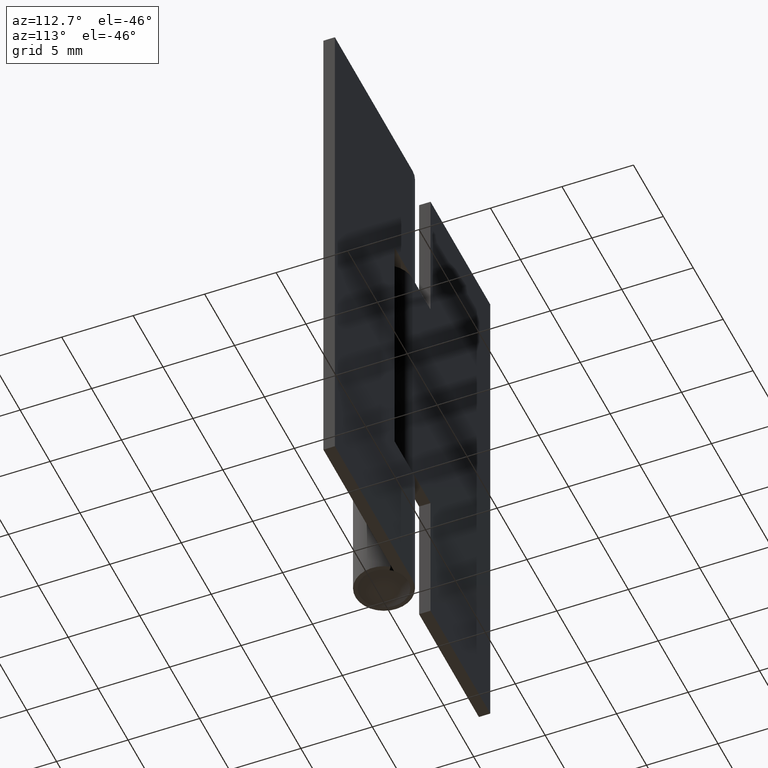
[diagram: clean part render]
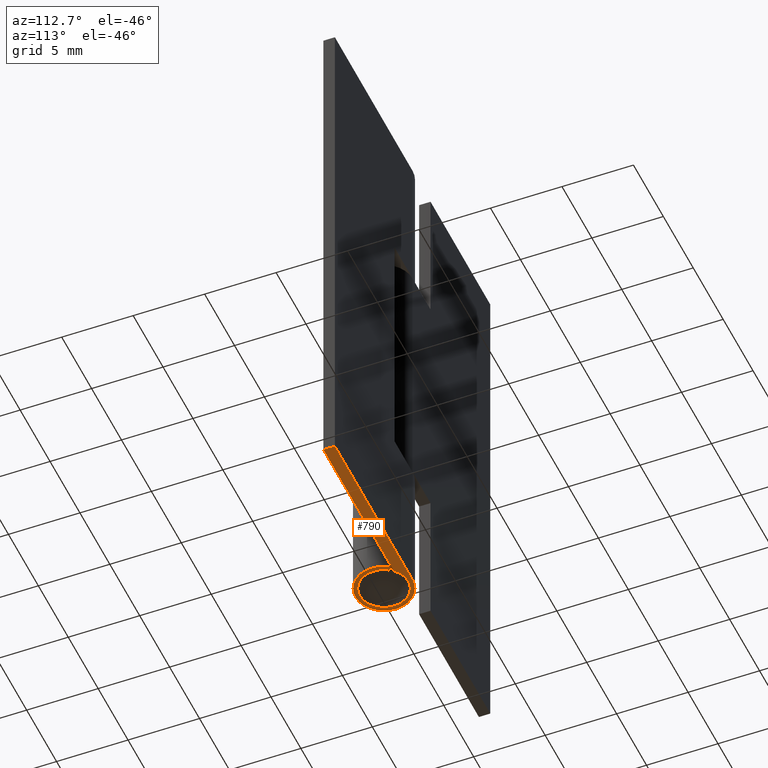
[diagram: same view with one face highlighted and labeled with its STEP entity id]
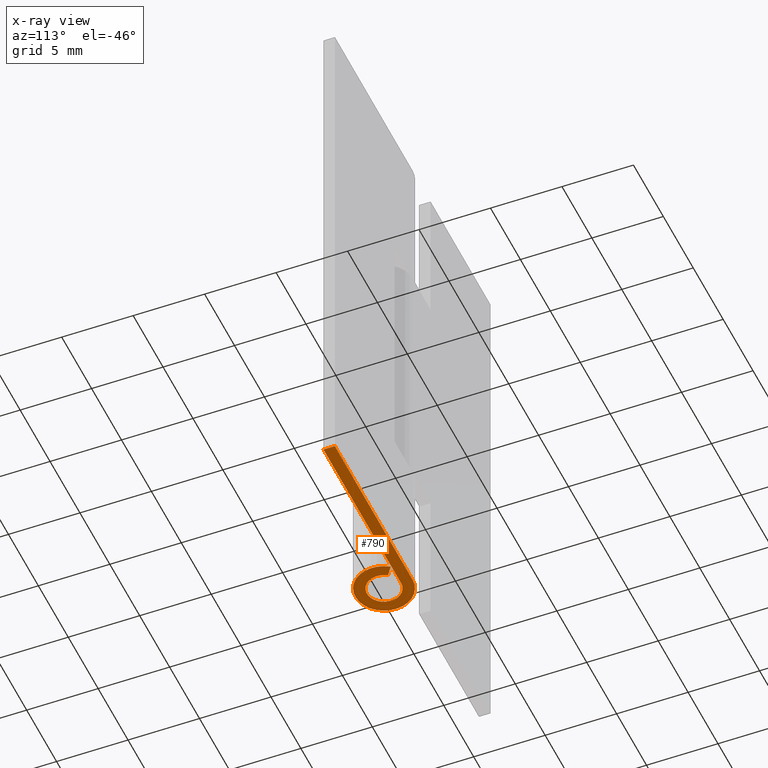
[diagram: x-ray of the same camera — body ghosted, the highlighted face saturated]
A machine part, auxiliary view. The second image highlights one B-rep face of the part: STEP entity #790.
The next image is the same camera in x-ray: the body ghosted, the highlighted face saturated — about 0% of this face is hidden behind the body in this view.
In plain terms, the highlighted face is a freeform B-spline surface patch.
Its self-contained STEP definition (entity closure, byte-faithful):
#690=CARTESIAN_POINT('',(-2.749228759156930,-2.199795509127577,0.0));
#691=CARTESIAN_POINT('',(13.749249364118381,-2.199795509127577,0.0));
#692=CARTESIAN_POINT('',(-2.749228759156930,2.199799886185817,0.0));
#693=CARTESIAN_POINT('',(13.749249364118381,2.199799886185817,0.0));
#694=B_SPLINE_SURFACE_WITH_KNOTS('',1,1,((#690,#692),(#691,#693)),.UNSPECIFIED.,.F.,.F.,.U.,(2,2),(2,2),(0.0,16.498478123275309),(0.0,4.399595395313393),.UNSPECIFIED.);
#695=CARTESIAN_POINT('',(1.384347E-014,2.0,0.0));
#696=VERTEX_POINT('',#695);
#697=CARTESIAN_POINT('',(13.0,1.999999000000000,0.0));
#698=VERTEX_POINT('',#697);
#699=CARTESIAN_POINT('',(1.384347E-014,2.0,0.0));
#700=CARTESIAN_POINT('',(13.0,1.999999000000000,0.0));
#701=QUASI_UNIFORM_CURVE('',1,(#699,#700),.UNSPECIFIED.,.F.,.U.);
#702=EDGE_CURVE('',#696,#698,#701,.T.);
#703=ORIENTED_EDGE('',*,*,#702,.T.);
#704=CARTESIAN_POINT('',(13.0,1.200000000000000,0.0));
#705=VERTEX_POINT('',#704);
#706=CARTESIAN_POINT('',(13.0,1.999999000000000,0.0));
#707=CARTESIAN_POINT('',(13.0,1.200000000000000,0.0));
#708=QUASI_UNIFORM_CURVE('',1,(#706,#707),.UNSPECIFIED.,.F.,.U.);
#709=EDGE_CURVE('',#698,#705,#708,.T.);
#710=ORIENTED_EDGE('',*,*,#709,.T.);
#711=CARTESIAN_POINT('',(1.709743E-014,1.200000000000020,0.0));
#712=VERTEX_POINT('',#711);
#713=CARTESIAN_POINT('',(13.0,1.200000000000000,0.0));
#714=CARTESIAN_POINT('',(1.709743E-014,1.200000000000020,0.0));
#715=QUASI_UNIFORM_CURVE('',1,(#713,#714),.UNSPECIFIED.,.F.,.U.);
#716=EDGE_CURVE('',#705,#712,#715,.T.);
#717=ORIENTED_EDGE('',*,*,#716,.T.);
#718=CARTESIAN_POINT('',(0.981784090317221,0.690000000000011,0.0));
#719=VERTEX_POINT('',#718);
#720=CARTESIAN_POINT('',(0.981784090317221,0.690000000000011,0.0));
#721=CARTESIAN_POINT('',(1.053606424845792,0.587926162224422,0.0));
#722=CARTESIAN_POINT('',(1.146328935430797,0.398904182143549,0.0));
#723=CARTESIAN_POINT('',(1.200233068406793,0.128158589362954,0.0));
#724=CARTESIAN_POINT('',(1.202601860530300,-0.122317621862901,0.0));
#725=CARTESIAN_POINT('',(1.152958768940641,-0.368931154498446,0.0));
#726=CARTESIAN_POINT('',(1.031585402112339,-0.635379216249773,0.0));
#727=CARTESIAN_POINT('',(0.834330703310877,-0.886168969748628,0.0));
#728=CARTESIAN_POINT('',(0.586337343297605,-1.060580031812583,0.0));
#729=CARTESIAN_POINT('',(0.345342346522549,-1.155020282122436,0.0));
#730=CARTESIAN_POINT('',(0.149252013675548,-1.196273661904103,0.0));
#731=CARTESIAN_POINT('',(-0.084336330430198,-1.205861343738027,0.0));
#732=CARTESIAN_POINT('',(-0.340654428637064,-1.162628432956125,0.0));
#733=CARTESIAN_POINT('',(-0.633015552638036,-1.036880290516315,0.0));
#734=CARTESIAN_POINT('',(-0.875943076199225,-0.841756527348630,0.0));
#735=CARTESIAN_POINT('',(-1.066695147600070,-0.576595855708915,0.0));
#736=CARTESIAN_POINT('',(-1.167940530832737,-0.318669495885458,0.0));
#737=CARTESIAN_POINT('',(-1.211497721940501,-0.020975891254736,0.0));
#738=CARTESIAN_POINT('',(-1.187058431421372,0.238524414715994,0.0));
#739=CARTESIAN_POINT('',(-1.104922397491392,0.483976535862084,0.0));
#740=CARTESIAN_POINT('',(-1.000849341309444,0.674702755683606,0.0));
#741=CARTESIAN_POINT('',(-0.841899453443276,0.868591957628703,0.0));
#742=CARTESIAN_POINT('',(-0.611071452515139,1.049864663183085,0.0));
#743=CARTESIAN_POINT('',(-0.316168298102833,1.172881807501993,0.0));
#744=CARTESIAN_POINT('',(-0.099838031366214,1.200017796675217,0.0));
#745=CARTESIAN_POINT('',(1.709743E-014,1.200000000000020,0.0));
#746=B_SPLINE_CURVE_WITH_KNOTS('',3,(#720,#721,#722,#723,#724,#725,#726,#727,#728,#729,#730,#731,#732,#733,#734,#735,#736,#737,#738,#739,#740,#741,#742,#743,#744,#745),.UNSPECIFIED.,.F.,.U.,(4,1,1,1,1,1,1,1,1,1,1,1,1,1,1,1,1,1,1,1,1,1,1,4),(0.000000070798065,0.374410141488997,0.624033605397800,0.823725954271660,1.123273589926753,1.372894546844607,1.697357892546063,2.071783958429248,2.271481583285746,2.471177623440992,2.670875271281060,2.970418905698280,3.244971527839904,3.619388441333200,3.893968215191714,4.218473121806267,4.443127834576168,4.792580522810755,4.992252664611680,5.216914851531207,5.441571384637726,5.741116073879282,6.090584787470999,6.390106934469356),.UNSPECIFIED.);
#747=EDGE_CURVE('',#719,#712,#746,.T.);
#748=ORIENTED_EDGE('',*,*,#747,.F.);
#749=CARTESIAN_POINT('',(1.636306817195360,1.150000000000020,0.0));
#750=VERTEX_POINT('',#749);
#751=CARTESIAN_POINT('',(0.981784090317221,0.690000000000011,0.0));
#752=CARTESIAN_POINT('',(1.636306817195360,1.150000000000020,0.0));
#753=QUASI_UNIFORM_CURVE('',1,(#751,#752),.UNSPECIFIED.,.F.,.U.);
#754=EDGE_CURVE('',#719,#750,#753,.T.);
#755=ORIENTED_EDGE('',*,*,#754,.T.);
#756=CARTESIAN_POINT('',(1.636306817195360,1.150000000000020,0.0));
#757=CARTESIAN_POINT('',(1.744016779867886,0.996875129935445,0.0));
#758=CARTESIAN_POINT('',(1.858566328598863,0.772350327729468,0.0));
#759=CARTESIAN_POINT('',(1.973716633152282,0.379333851996945,0.0));
#760=CARTESIAN_POINT('',(2.015862197590937,0.025687779155407,0.0));
#761=CARTESIAN_POINT('',(1.975554013546179,-0.376423621289574,0.0));
#762=CARTESIAN_POINT('',(1.865271537146499,-0.757377359664604,0.0));
#763=CARTESIAN_POINT('',(1.688211557641040,-1.097938777408574,0.0));
#764=CARTESIAN_POINT('',(1.402935047827389,-1.449131508268836,0.0));
#765=CARTESIAN_POINT('',(1.078087754320612,-1.703854794471455,0.0));
#766=CARTESIAN_POINT('',(0.714073564624530,-1.878076135558515,0.0));
#767=CARTESIAN_POINT('',(0.399811157625323,-1.968489217175552,0.0));
#768=CARTESIAN_POINT('',(0.026902947259339,-2.013075086960539,0.0));
#769=CARTESIAN_POINT('',(-0.411692187017728,-1.978524863712354,0.0));
#770=CARTESIAN_POINT('',(-0.868391616175098,-1.822952749566054,0.0));
#771=CARTESIAN_POINT('',(-1.291873082294338,-1.552996927085938,0.0));
#772=CARTESIAN_POINT('',(-1.600027260754392,-1.228088928147811,0.0));
#773=CARTESIAN_POINT('',(-1.816572102467966,-0.862828171944214,0.0));
#774=CARTESIAN_POINT('',(-1.934624754007541,-0.542663369043124,0.0));
#775=CARTESIAN_POINT('',(-2.009589878096890,-0.146464408524579,0.0));
#776=CARTESIAN_POINT('',(-2.000711608687766,0.273255787612998,0.0));
#777=CARTESIAN_POINT('',(-1.891195838720903,0.684154453396837,0.0));
#778=CARTESIAN_POINT('',(-1.733414121799940,1.017271402447036,0.0));
#779=CARTESIAN_POINT('',(-1.504746424821562,1.341753136103748,0.0));
#780=CARTESIAN_POINT('',(-1.158535706949319,1.656927363991844,0.0));
#781=CARTESIAN_POINT('',(-0.749940330401653,1.871500445797277,0.0));
#782=CARTESIAN_POINT('',(-0.353600418956114,1.979097531953543,0.0));
#783=CARTESIAN_POINT('',(-0.117865729725382,2.000010309104279,0.0));
#784=CARTESIAN_POINT('',(1.384347E-014,2.0,0.0));
#785=B_SPLINE_CURVE_WITH_KNOTS('',3,(#756,#757,#758,#759,#760,#761,#762,#763,#764,#765,#766,#767,#768,#769,#770,#771,#772,#773,#774,#775,#776,#777,#778,#779,#780,#781,#782,#783,#784),.UNSPECIFIED.,.F.,.U.,(4,1,1,1,1,1,1,1,1,1,1,1,1,1,1,1,1,1,1,1,1,1,1,1,1,1,4),(0.000000210224265,0.561607952012910,0.748818999057132,1.227249017833595,1.622470047930248,1.955286493359838,2.412917556230195,2.766509364287373,3.307326115059665,3.640144730539506,3.972962787601636,4.284981784262236,4.763407380662093,5.283433496229447,5.720214702052406,6.261047386823774,6.614669655978860,6.989087581993505,7.280304801097683,7.821126223590865,8.237117411303959,8.549140473342908,8.923555663740618,9.422785883043240,9.942813078190437,10.296436605244830,10.650034254418530),.UNSPECIFIED.);
#786=EDGE_CURVE('',#750,#696,#785,.T.);
#787=ORIENTED_EDGE('',*,*,#786,.T.);
#788=EDGE_LOOP('',(#703,#710,#717,#748,#755,#787));
#789=FACE_OUTER_BOUND('',#788,.T.);
#790=ADVANCED_FACE('',(#789),#694,.F.);